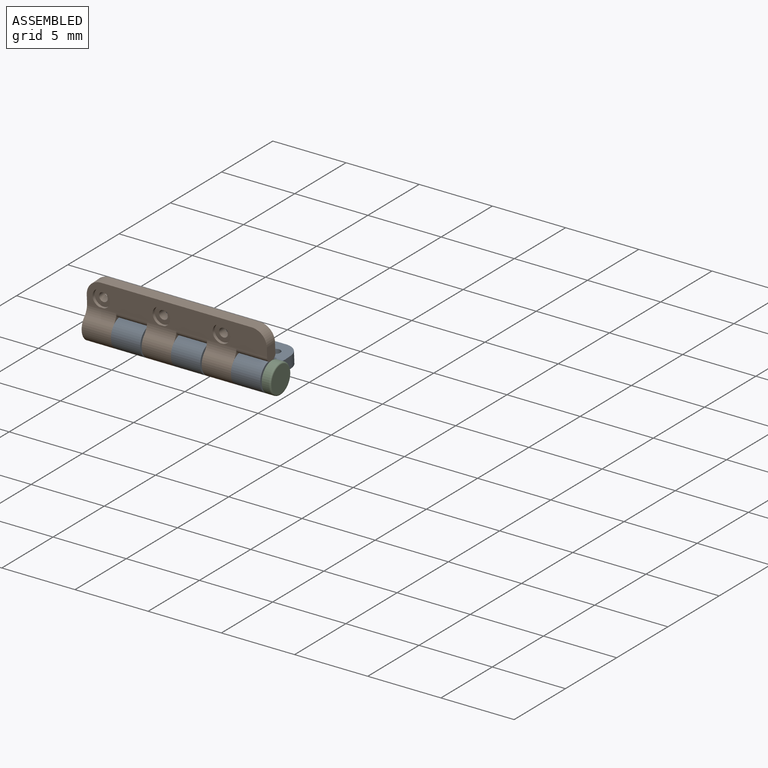
[diagram: assembled view]
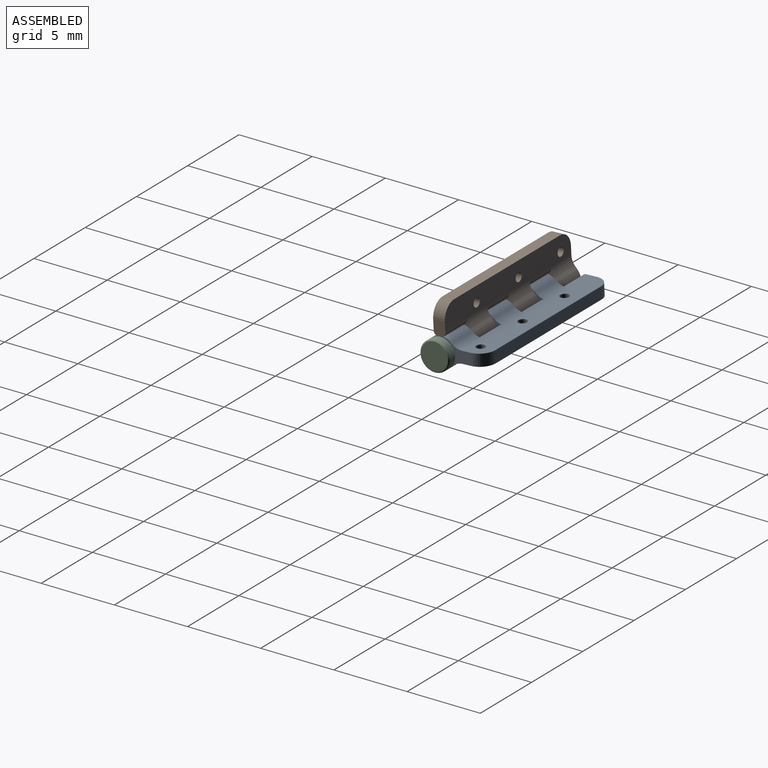
[diagram: assembled view, second angle]
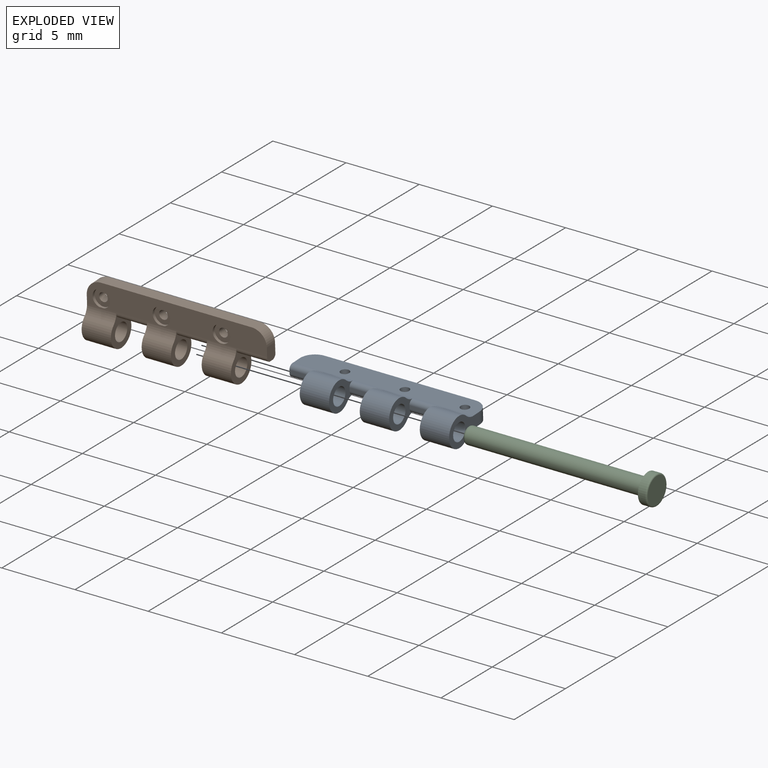
[diagram: exploded view]
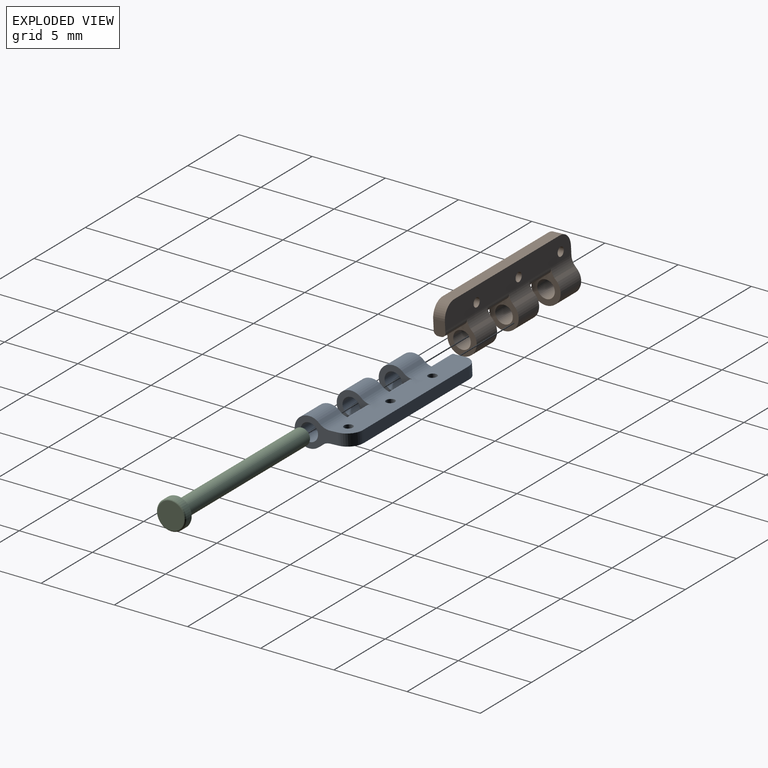
[diagram: exploded view, second angle]
ASSEMBLY  parts=3 mates=2
PART A: 40 faces, bbox 12.3x4x2 mm
  f0: cylinder r=1mm len=12.3mm, axis (-1,0,0), area 5.4mm2, adj f1,f2,f4,f6,f7,f8,f10,f11
  f1: plane 3x2mm, normal (1,0,0), area 2.9mm2, adj f0,f3,f4,f5,f6,f20,f21
  f2: plane 2.33x2mm, normal (-1,0,0), area 2.1mm2, adj f0,f3,f4,f12,f20,f36,f39
  f3: cylinder r=0.6mm len=2mm, axis (-1,0,0), area 7.5mm2, adj f1,f2
  f4: cylinder r=1mm len=2mm, axis (-1,0,0), area 9.5mm2, adj f0,f1,f2,f20
  f5: plane 12.3x1.57mm, normal (0,0,1), area 18.1mm2, adj f1,f13,f14,f20,f21,f22,f24,f28
  f6: plane 12.3x1.57mm, normal (0,0,-1), area 15.5mm2, adj f0,f1,f13,f14,f21,f22,f26,f30
  f7: plane 2.33x2mm, normal (-1,0,0), area 2.1mm2, adj f0,f15,f17,f19,f20,f35,f37
  f8: plane 2.33x2mm, normal (1,0,0), area 2.1mm2, adj f0,f9,f17,f19,f20,f34,f38
  f9: plane 2.1x0.21mm, normal (0,-1,0), area 0.4mm2, adj f8,f10,f34,f38
  f10: plane 2.33x2mm, normal (-1,0,0), area 2.1mm2, adj f0,f9,f16,f18,f20,f34,f38
  f11: plane 2.33x2mm, normal (1,0,0), area 2.1mm2, adj f0,f12,f16,f18,f20,f36,f39
  f12: plane 2.1x0.21mm, normal (0,-1,0), area 0.4mm2, adj f2,f11,f36,f39
  f13: plane 10.3x0.8mm, normal (0,1,0), area 8.2mm2, adj f5,f6,f21,f22
  f14: plane 1x0.81mm, normal (-1,0,0), area 0.8mm2, adj f0,f5,f6,f15,f20,f22,f35,f37
  f15: plane 2.1x0.21mm, normal (0,-1,0), area 0.4mm2, adj f7,f14,f35,f37
  f16: cylinder r=0.6mm len=2mm, axis (-1,0,0), area 7.5mm2, adj f10,f11
  f17: cylinder r=0.6mm len=2mm, axis (-1,0,0), area 7.5mm2, adj f7,f8
  f18: cylinder r=1mm len=2mm, axis (-1,0,0), area 9.5mm2, adj f0,f10,f11,f20
  f19: cylinder r=1mm len=2mm, axis (-1,0,0), area 9.5mm2, adj f0,f7,f8,f20
  f20: cylinder r=1mm len=12.3mm, axis (-1,0,0), area 5.4mm2, adj f1,f2,f4,f5,f7,f8,f10,f11
  f21: cylinder r=1mm len=1mm, axis (0,0,-1), area 1.3mm2, adj f1,f5,f6,f13
  f22: cylinder r=1mm len=1mm, axis (0,0,1), area 1.3mm2, adj f5,f6,f13,f14
  f23: plane 0.36x0.03mm, normal (0,0,1), area 0mm2, adj f0,f26
  f24: cylinder r=0.3mm len=0.6mm, axis (0,0,-1), area 1.1mm2, adj f5,f25
  f25: plane 1.2x1.2mm, normal (0,0,-1), area 0.8mm2, adj f24,f26
  f26: cylinder r=0.6mm len=1.2mm, axis (0,0,-1), area 0.8mm2, adj f6,f23,f25
  f27: plane 0.36x0.03mm, normal (0,0,1), area 0mm2, adj f0,f30
  f28: cylinder r=0.3mm len=0.6mm, axis (0,0,-1), area 1.1mm2, adj f5,f29
  f29: plane 1.2x1.2mm, normal (0,0,-1), area 0.8mm2, adj f28,f30
  f30: cylinder r=0.6mm len=1.2mm, axis (0,0,-1), area 0.8mm2, adj f6,f27,f29
  f31: cylinder r=0.3mm len=0.6mm, axis (0,0,-1), area 1.1mm2, adj f5,f32
  f32: plane 1.2x1.2mm, normal (0,0,-1), area 0.8mm2, adj f31,f33
  f33: cylinder r=0.6mm len=1.2mm, axis (0,0,-1), area 0.8mm2, adj f0,f6,f32
  f34: cylinder r=0.3mm len=2.1mm, axis (-1,0,0), area 1.1mm2, adj f0,f8,f9,f10
  f35: cylinder r=0.3mm len=2.1mm, axis (-1,0,0), area 1.1mm2, adj f0,f7,f14,f15
  f36: cylinder r=0.3mm len=2.1mm, axis (-1,0,0), area 1.1mm2, adj f0,f2,f11,f12
  f37: cylinder r=0.3mm len=2.1mm, axis (-1,0,0), area 1.1mm2, adj f7,f14,f15,f20
  f38: cylinder r=0.3mm len=2.1mm, axis (-1,0,0), area 1.1mm2, adj f8,f9,f10,f20
  f39: cylinder r=0.3mm len=2.1mm, axis (-1,0,0), area 1.1mm2, adj f2,f11,f12,f20
PART B: same geometry as A
PART C: 7 faces, bbox 12.9x2.2x2.2 mm
  f0: plane 0.74x0.74mm, normal (-1,0,0), area 0.4mm2, adj f2
  f1: cylinder r=0.57mm len=12.1mm, axis (1,0,0), area 43.3mm2, adj f2,f5
  f2: torus R=0.37mm, axis (1,0,0), area 1mm2, adj f0,f1
  f3: cylinder r=1mm len=2mm, axis (-1,0,0), area 3.1mm2, adj f5,f6
  f4: plane 1.8x1.8mm, normal (1,0,0), area 2.5mm2, adj f6
  f5: plane 2x2mm, normal (-1,0,0), area 2.1mm2, adj f1,f3
  f6: torus R=0.9mm, axis (1,0,0), area 1mm2, adj f3,f4
PLACE A rot(axis=(1,0,0),2.9deg) t=(-5.87,-23.69,19.82)mm
PLACE B rot(axis=(0,-0.69,-0.72),180deg) t=(-7.87,-22.64,18.87)mm
PLACE C rot(axis=(-1,0,0),2.3deg) t=(-5.77,-23.69,19.91)mm
MATE revolute C.f1 <-> B.f3  axis (-1,0,0) through (-12.97,-22.69,19.87)mm
MATE revolute A.f3 <-> B.f3  axis (-1,0,0) through (-10.97,-22.69,19.87)mm
